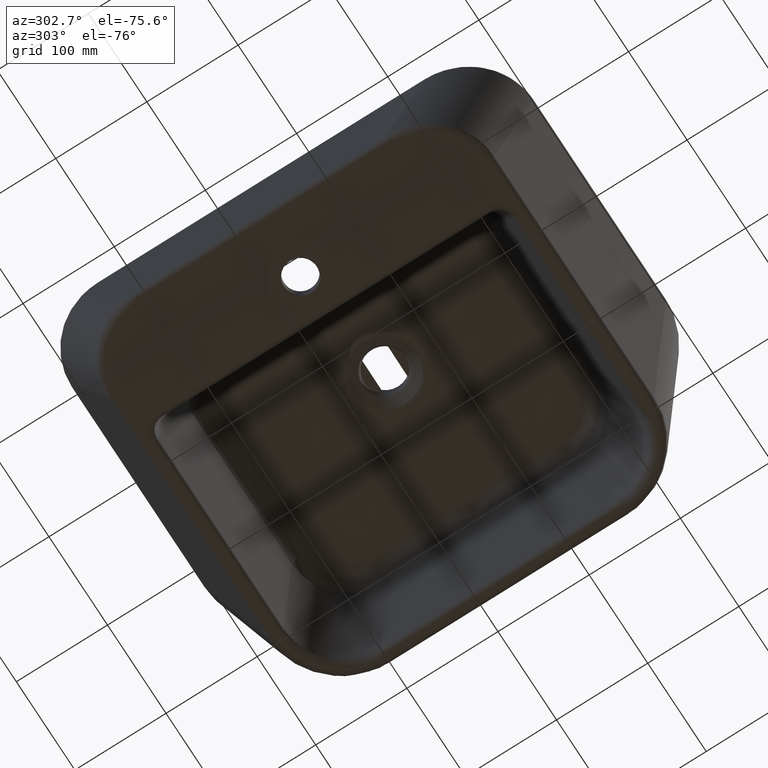
[diagram: clean part render]
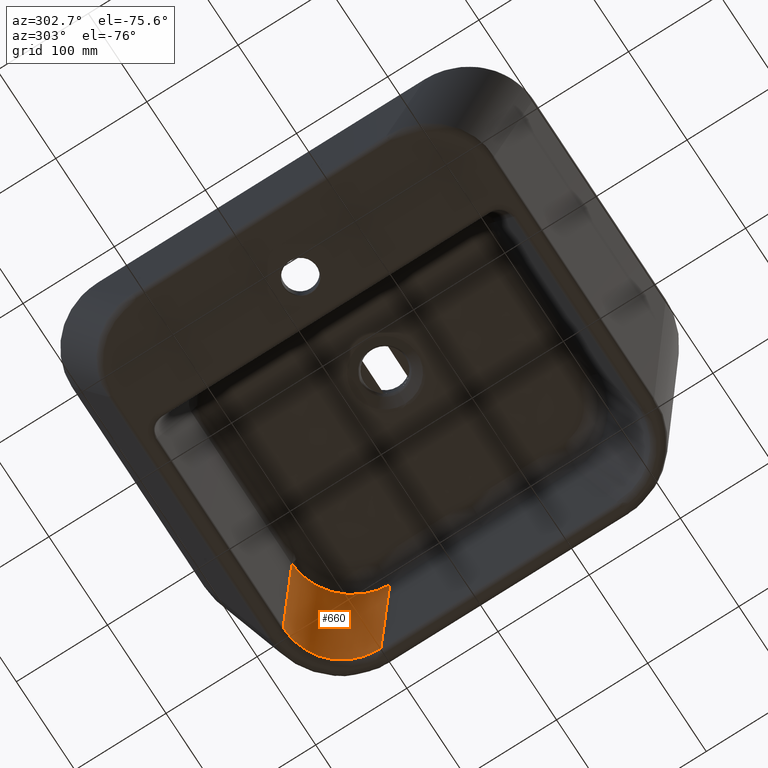
[diagram: same view with one face highlighted and labeled with its STEP entity id]
A machine part, auxiliary view. The second image highlights one B-rep face of the part: STEP entity #660.
In plain terms, the highlighted cylindrical surface (partial cylindrical patch) has radius 68.3617 mm, axis along (-0.2841, -0.282, 0.9164).
Its self-contained STEP definition (entity closure, byte-faithful):
#230=CYLINDRICAL_SURFACE('',#3269,68.3617021276596);
#319=ELLIPSE('',#3268,75.8821207854675,68.3617021276596);
#480=LINE('',#4819,#556);
#503=LINE('',#6139,#579);
#556=VECTOR('',#3503,1.);
#579=VECTOR('',#3618,1.);
#660=ADVANCED_FACE('',(#897),#230,.F.);
#897=FACE_OUTER_BOUND('',#1110,.T.);
#1110=EDGE_LOOP('',(#1555,#1556,#1557,#1558));
#1555=ORIENTED_EDGE('',*,*,#2588,.T.);
#1556=ORIENTED_EDGE('',*,*,#2706,.F.);
#1557=ORIENTED_EDGE('',*,*,#2700,.T.);
#1558=ORIENTED_EDGE('',*,*,#2707,.F.);
#2312=VERTEX_POINT('',#4817);
#2314=VERTEX_POINT('',#4820);
#2377=VERTEX_POINT('',#6140);
#2378=VERTEX_POINT('',#6141);
#2588=EDGE_CURVE('',#2314,#2312,#480,.T.);
#2700=EDGE_CURVE('',#2377,#2378,#503,.T.);
#2706=EDGE_CURVE('',#2377,#2312,#3072,.T.);
#2707=EDGE_CURVE('',#2314,#2378,#319,.T.);
#3072=B_SPLINE_CURVE_WITH_KNOTS('',3,(#6178,#6179,#6180,#6181,#6182,#6183,
#6184,#6185,#6186,#6187,#6188,#6189,#6190,#6191,#6192,#6193,#6194,#6195),
 .UNSPECIFIED.,.F.,.F.,(4,2,2,2,2,2,2,2,4),(0.,0.125,0.25,0.375,0.5,0.625,
0.75,0.875,1.),.UNSPECIFIED.);
#3268=AXIS2_PLACEMENT_3D('',#6196,#3625,#3626);
#3269=AXIS2_PLACEMENT_3D('',#6197,#3627,#3628);
#3503=DIRECTION('',(-0.284059022465868,-0.28204311631054,0.916385373245108));
#3618=DIRECTION('',(0.284059022465868,0.28204311631054,-0.916385373245108));
#3625=DIRECTION('',(0.0263433573323905,0.0261564041571758,0.999310697454013));
#3626=DIRECTION('',(-0.709131166574325,-0.704098614285642,0.0371231727358471));
#3627=DIRECTION('',(-0.284059022465868,-0.28204311631054,0.916385373245108));
#3628=DIRECTION('',(0.955163352415391,0.,0.296079330927694));
#4817=CARTESIAN_POINT('',(430.851902876973,-725.581756859705,177.800634459801));
#4819=CARTESIAN_POINT('',(426.42681332988,-729.975442492293,192.076144179768));
#4820=CARTESIAN_POINT('',(458.304307010255,-698.324176569688,89.238118860859));
#6139=CARTESIAN_POINT('',(399.774608419628,-626.268196998305,67.2766851750925));
#6140=CARTESIAN_POINT('',(365.529118480523,-660.270654016431,177.753957846759));
#6141=CARTESIAN_POINT('',(392.962868262861,-633.031595691417,89.251621904159));
#6178=CARTESIAN_POINT('',(365.529118480523,-660.270654016431,177.753957846759));
#6179=CARTESIAN_POINT('',(369.802820485989,-660.382291994511,178.116680438788));
#6180=CARTESIAN_POINT('',(374.024564387623,-660.884912782273,178.441705430802));
#6181=CARTESIAN_POINT('',(382.363004745426,-662.681068100756,179.014727209719));
#6182=CARTESIAN_POINT('',(386.44930420847,-663.975129405851,179.260025951278));
#6183=CARTESIAN_POINT('',(394.24644593688,-667.284413911746,179.655410707752));
#6184=CARTESIAN_POINT('',(398.015936241657,-669.324097930368,179.808507433802));
#6185=CARTESIAN_POINT('',(405.098751396882,-674.099301616919,180.014233133752));
#6186=CARTESIAN_POINT('',(408.36702953233,-676.796384005583,180.066252867054));
#6187=CARTESIAN_POINT('',(414.365865076728,-682.799837229746,180.070042129191));
#6188=CARTESIAN_POINT('',(417.112936050786,-686.141514762984,180.020188081595));
#6189=CARTESIAN_POINT('',(421.843062839795,-693.182915610093,179.822400786005));
#6190=CARTESIAN_POINT('',(423.855123222904,-696.902140823572,179.67531402523));
#6191=CARTESIAN_POINT('',(427.173900528495,-704.737282387694,179.2852257025));
#6192=CARTESIAN_POINT('',(428.464401763499,-708.840746674094,179.041893258834));
#6193=CARTESIAN_POINT('',(430.238236400343,-717.106015518799,178.480357365556));
#6194=CARTESIAN_POINT('',(430.740423771691,-721.308437050811,178.160270357355));
#6195=CARTESIAN_POINT('',(430.851902876973,-725.581756859705,177.800634459801));
#6196=CARTESIAN_POINT('',(386.087751809085,-705.195029694438,91.3216984077597));
#6197=CARTESIAN_POINT('',(373.016684990496,-718.173333946193,133.489464603969));